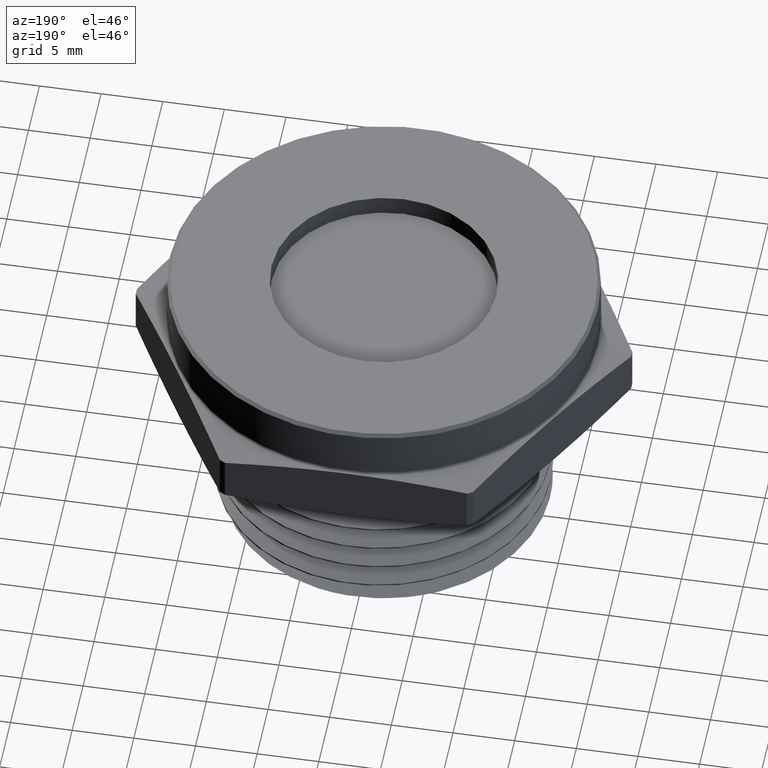
[diagram: clean part render]
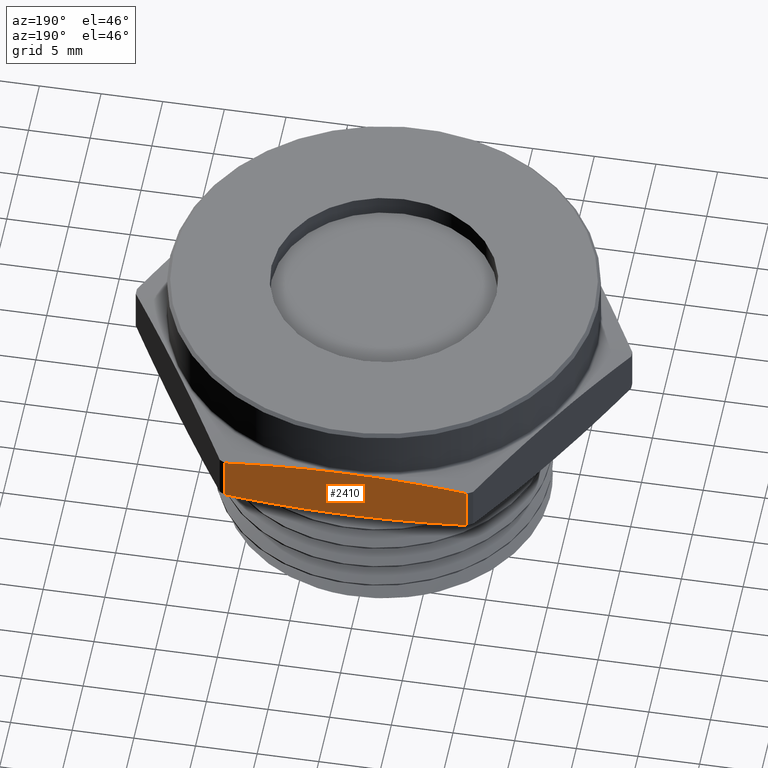
[diagram: same view with one face highlighted and labeled with its STEP entity id]
A machine part, auxiliary view. The second image highlights one B-rep face of the part: STEP entity #2410.
In plain terms, the highlighted planar face has unit normal (0, -1, 0).
Its self-contained STEP definition (entity closure, byte-faithful):
#496 = LINE ( 'NONE', #996, #499 ) ;
#498 = LINE ( 'NONE', #998, #501 ) ;
#499 = VECTOR ( 'NONE', #997, 39.37007874015748100 ) ;
#501 = VECTOR ( 'NONE', #999, 39.37007874015748100 ) ;
#996 = CARTESIAN_POINT ( 'NONE',  ( -0.3862318986596255400, 0.6900000000000000600, 4.729976584221138200E-017 ) ) ;
#997 = DIRECTION ( 'NONE',  ( -1.224646799147349800E-016, -0.0000000000000000000, -1.000000000000000000 ) ) ;
#998 = CARTESIAN_POINT ( 'NONE',  ( 0.3862318986596252600, 0.6900000000000000600, -4.729976584221138200E-017 ) ) ;
#999 = DIRECTION ( 'NONE',  ( 1.224646799147349800E-016, 0.0000000000000000000, 1.000000000000000000 ) ) ;
#1284 = B_SPLINE_CURVE_WITH_KNOTS ( 'NONE', 3,
 ( #2022, #2023, #2028, #2029, #2030, #2031, #2032, #2033, #2034, #2035 ),
 .UNSPECIFIED., .F., .F.,
 ( 4, 2, 2, 2, 4 ),
 ( 0.01710330043053141800, 0.02202793163680559800, 0.02695256284307977900, 0.03187719404935396300, 0.03680182525562814000 ),
 .UNSPECIFIED. ) ;
#1287 = B_SPLINE_CURVE_WITH_KNOTS ( 'NONE', 3,
 ( #2071, #2070, #2075, #2076, #2077, #2078, #2079, #2080, #2081, #2082 ),
 .UNSPECIFIED., .F., .F.,
 ( 4, 2, 2, 2, 4 ),
 ( 0.03855655573833618300, 0.04347636953674217200, 0.04839618333514815500, 0.05331599713355414400, 0.05823581093196013300 ),
 .UNSPECIFIED. ) ;
#1299 = VERTEX_POINT ( 'NONE', #1388 ) ;
#1301 = VERTEX_POINT ( 'NONE', #1457 ) ;
#1305 = VERTEX_POINT ( 'NONE', #1455 ) ;
#1315 = VERTEX_POINT ( 'NONE', #1469 ) ;
#1388 = CARTESIAN_POINT ( 'NONE',  ( 0.3862318986596252600, 0.6900000000000000600, 0.02300783886571749300 ) ) ;
#1455 = CARTESIAN_POINT ( 'NONE',  ( -0.3862318986596255400, 0.6900000000000000600, 0.1669921611342826100 ) ) ;
#1457 = CARTESIAN_POINT ( 'NONE',  ( -0.3862318986596255400, 0.6900000000000000600, 0.02300783886571763600 ) ) ;
#1469 = CARTESIAN_POINT ( 'NONE',  ( 0.3862318986596252600, 0.6900000000000000600, 0.1669921611342825600 ) ) ;
#1591 = EDGE_CURVE ( 'NONE', #1301, #1299, #1284, .T. ) ;
#1601 = EDGE_CURVE ( 'NONE', #1315, #1305, #1287, .T. ) ;
#1728 = EDGE_LOOP ( 'NONE', ( #1819, #1820, #1821, #1822 ) ) ;
#1819 = ORIENTED_EDGE ( 'NONE', *, *, #2213, .F. ) ;
#1820 = ORIENTED_EDGE ( 'NONE', *, *, #1601, .F. ) ;
#1821 = ORIENTED_EDGE ( 'NONE', *, *, #2214, .F. ) ;
#1822 = ORIENTED_EDGE ( 'NONE', *, *, #1591, .F. ) ;
#2022 = CARTESIAN_POINT ( 'NONE',  ( -0.3862318986596255400, 0.6900000000000000600, 0.02300783886571763600 ) ) ;
#2023 = CARTESIAN_POINT ( 'NONE',  ( -0.3219022296586560600, 0.6899999999999998400, 0.01632903927218824400 ) ) ;
#2028 = CARTESIAN_POINT ( 'NONE',  ( -0.2573352352397901800, 0.6900000000000000600, 0.01090476185387188700 ) ) ;
#2029 = CARTESIAN_POINT ( 'NONE',  ( -0.1284019515022680700, 0.6899999999999998400, 0.003527143888057107400 ) ) ;
#2030 = CARTESIAN_POINT ( 'NONE',  ( -0.06397452639532026600, 0.6900000000000000600, 0.001586084843639326800 ) ) ;
#2031 = CARTESIAN_POINT ( 'NONE',  ( 0.06479285100724331600, 0.6900000000000000600, 0.001602315153725564600 ) ) ;
#2032 = CARTESIAN_POINT ( 'NONE',  ( 0.1291328166739866600, 0.6900000000000000600, 0.003559008605192706500 ) ) ;
#2033 = CARTESIAN_POINT ( 'NONE',  ( 0.2577349924749877100, 0.6899999999999998400, 0.01093767975994839600 ) ) ;
#2034 = CARTESIAN_POINT ( 'NONE',  ( 0.3219976673027323300, 0.6900000000000001700, 0.01633894774689921600 ) ) ;
#2035 = CARTESIAN_POINT ( 'NONE',  ( 0.3862318986596252600, 0.6900000000000000600, 0.02300783886571749300 ) ) ;
#2070 = CARTESIAN_POINT ( 'NONE',  ( 0.3219976673027324400, 0.6900000000000000600, 0.1736610522531008600 ) ) ;
#2071 = CARTESIAN_POINT ( 'NONE',  ( 0.3862318986596252600, 0.6900000000000000600, 0.1669921611342825600 ) ) ;
#2075 = CARTESIAN_POINT ( 'NONE',  ( 0.2577349924749878800, 0.6900000000000000600, 0.1790623202400517300 ) ) ;
#2076 = CARTESIAN_POINT ( 'NONE',  ( 0.1291328166739868200, 0.6900000000000000600, 0.1864409913948074400 ) ) ;
#2077 = CARTESIAN_POINT ( 'NONE',  ( 0.06479285100724385700, 0.6900000000000000600, 0.1883976848462745900 ) ) ;
#2078 = CARTESIAN_POINT ( 'NONE',  ( -0.06397452639531961400, 0.6900000000000001700, 0.1884139151563608800 ) ) ;
#2079 = CARTESIAN_POINT ( 'NONE',  ( -0.1284019515022675500, 0.6900000000000000600, 0.1864728561119430600 ) ) ;
#2080 = CARTESIAN_POINT ( 'NONE',  ( -0.2573352352397896300, 0.6900000000000000600, 0.1790952381461283800 ) ) ;
#2081 = CARTESIAN_POINT ( 'NONE',  ( -0.3219022296586557800, 0.6899999999999998400, 0.1736709607278120200 ) ) ;
#2082 = CARTESIAN_POINT ( 'NONE',  ( -0.3862318986596255400, 0.6900000000000000600, 0.1669921611342826100 ) ) ;
#2213 = EDGE_CURVE ( 'NONE', #1305, #1301, #496, .T. ) ;
#2214 = EDGE_CURVE ( 'NONE', #1299, #1315, #498, .T. ) ;
#2348 = AXIS2_PLACEMENT_3D ( 'NONE', #2976, #2981, #2982 ) ;
#2410 = ADVANCED_FACE ( 'NONE', ( #3051 ), #2975, .F. ) ;
#2975 = PLANE ( 'NONE',  #2348 ) ;
#2976 = CARTESIAN_POINT ( 'NONE',  ( 0.3983716857408415900, 0.6900000000000000600, 0.1899999999999999700 ) ) ;
#2981 = DIRECTION ( 'NONE',  ( 1.714383885355653700E-016, -1.000000000000000000, 0.0000000000000000000 ) ) ;
#2982 = DIRECTION ( 'NONE',  ( 1.000000000000000000, 1.714383885355653700E-016, 0.0000000000000000000 ) ) ;
#3051 = FACE_OUTER_BOUND ( 'NONE', #1728, .T. ) ;